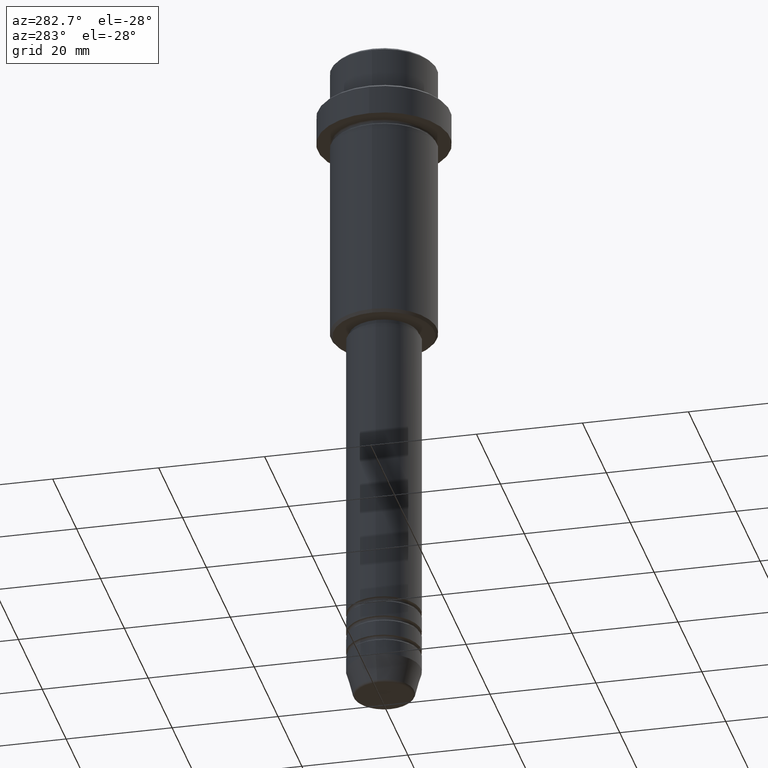
[diagram: clean part render]
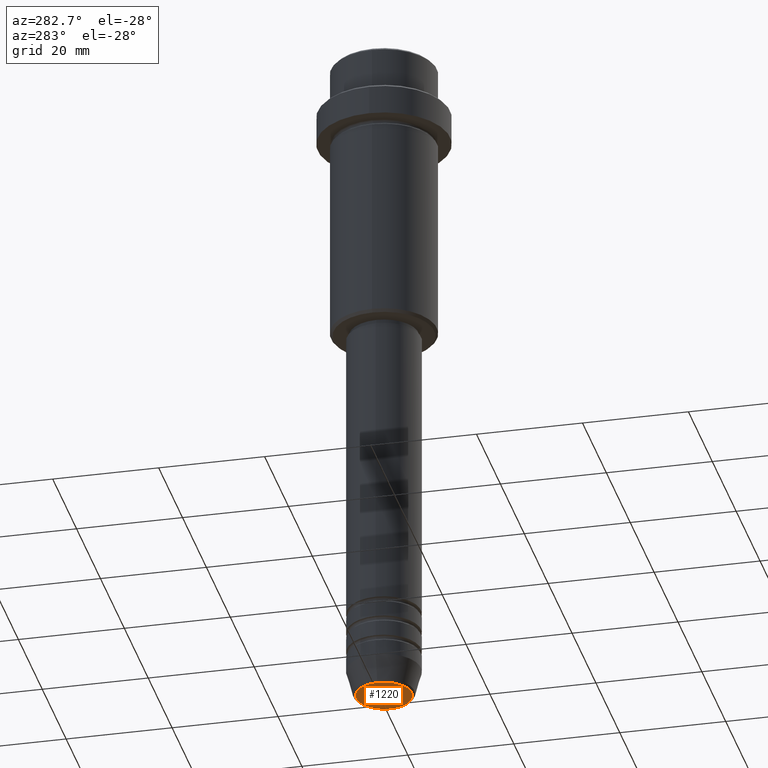
[diagram: same view with one face highlighted and labeled with its STEP entity id]
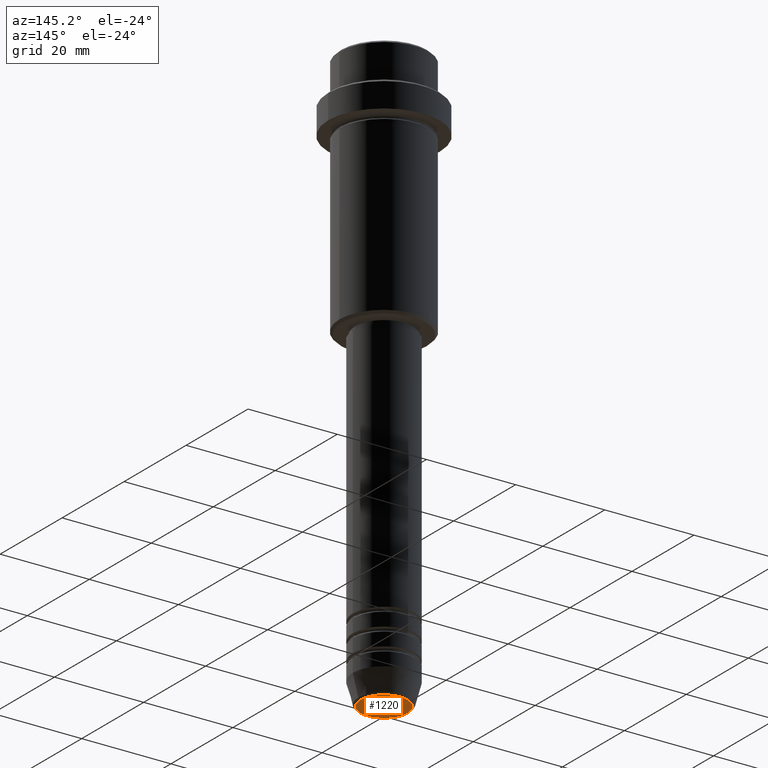
[diagram: same view with one face highlighted and labeled with its STEP entity id]
A machine part, auxiliary view. The second image highlights one B-rep face of the part: STEP entity #1220.
A second angle (auxiliary view) of the same face is appended — the face is thin or edge-on in the first view.
In plain terms, the highlighted planar face has unit normal (0, -0, 1).
Its self-contained STEP definition (entity closure, byte-faithful):
#19 = DIRECTION ( 'NONE',  ( 0.000000000000000000, 0.000000000000000000, -1.000000000000000000 ) ) ;
#94 = DIRECTION ( 'NONE',  ( 1.000000000000000000, 0.000000000000000000, 0.000000000000000000 ) ) ;
#96 = EDGE_CURVE ( 'NONE', #298, #345, #342, .T. ) ;
#107 = ORIENTED_EDGE ( 'NONE', *, *, #96, .T. ) ;
#136 = CARTESIAN_POINT ( 'NONE',  ( 0.000000000000000000, 0.000000000000000000, -130.0000000000000000 ) ) ;
#219 = DIRECTION ( 'NONE',  ( 0.000000000000000000, 0.000000000000000000, -1.000000000000000000 ) ) ;
#265 = DIRECTION ( 'NONE',  ( 1.000000000000000000, 0.000000000000000000, 0.000000000000000000 ) ) ;
#298 = VERTEX_POINT ( 'NONE', #1417 ) ;
#342 = CIRCLE ( 'NONE', #861, 5.276590543854901227 ) ;
#345 = VERTEX_POINT ( 'NONE', #1363 ) ;
#464 = CARTESIAN_POINT ( 'NONE',  ( 0.000000000000000000, 0.000000000000000000, -130.0000000000000000 ) ) ;
#467 = CIRCLE ( 'NONE', #554, 5.276590543854901227 ) ;
#479 = DIRECTION ( 'NONE',  ( 0.000000000000000000, -0.000000000000000000, 1.000000000000000000 ) ) ;
#550 = EDGE_CURVE ( 'NONE', #345, #298, #467, .T. ) ;
#554 = AXIS2_PLACEMENT_3D ( 'NONE', #1294, #219, #94 ) ;
#588 = DIRECTION ( 'NONE',  ( 1.000000000000000000, 0.000000000000000000, 0.000000000000000000 ) ) ;
#629 = AXIS2_PLACEMENT_3D ( 'NONE', #464, #479, #588 ) ;
#662 = EDGE_LOOP ( 'NONE', ( #107, #1214 ) ) ;
#783 = PLANE ( 'NONE',  #629 ) ;
#861 = AXIS2_PLACEMENT_3D ( 'NONE', #136, #19, #265 ) ;
#1112 = FACE_OUTER_BOUND ( 'NONE', #662, .T. ) ;
#1214 = ORIENTED_EDGE ( 'NONE', *, *, #550, .T. ) ;
#1220 = ADVANCED_FACE ( 'NONE', ( #1112 ), #783, .F. ) ;
#1294 = CARTESIAN_POINT ( 'NONE',  ( 0.000000000000000000, 0.000000000000000000, -130.0000000000000000 ) ) ;
#1363 = CARTESIAN_POINT ( 'NONE',  ( -5.276590543854901227, 6.757689212787765916E-16, -130.0000000000000000 ) ) ;
#1417 = CARTESIAN_POINT ( 'NONE',  ( 5.276590543854901227, 0.000000000000000000, -130.0000000000000000 ) ) ;